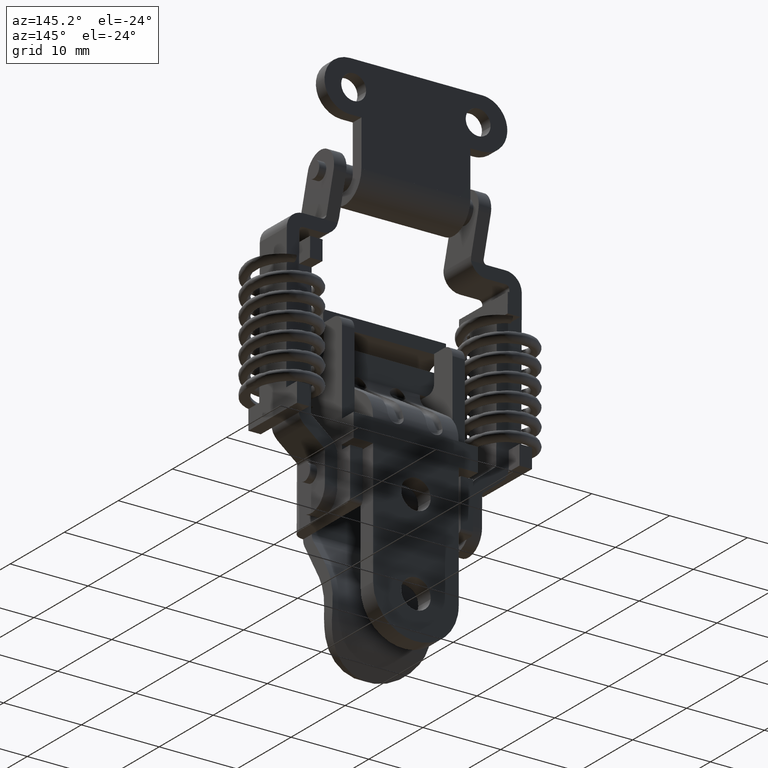
[diagram: clean part render]
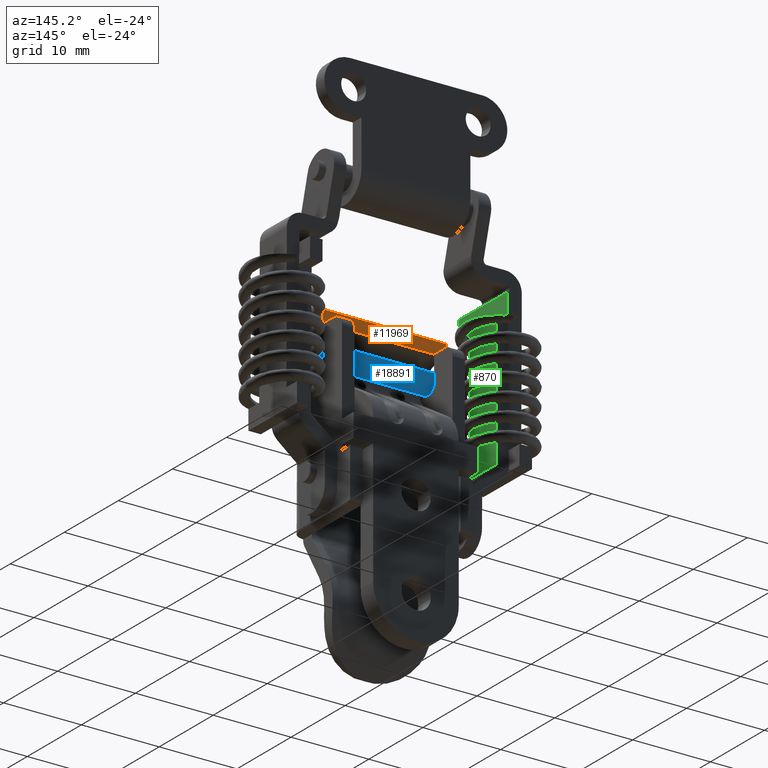
[diagram: same view with three faces highlighted in distinct colors, each labeled with its STEP entity id]
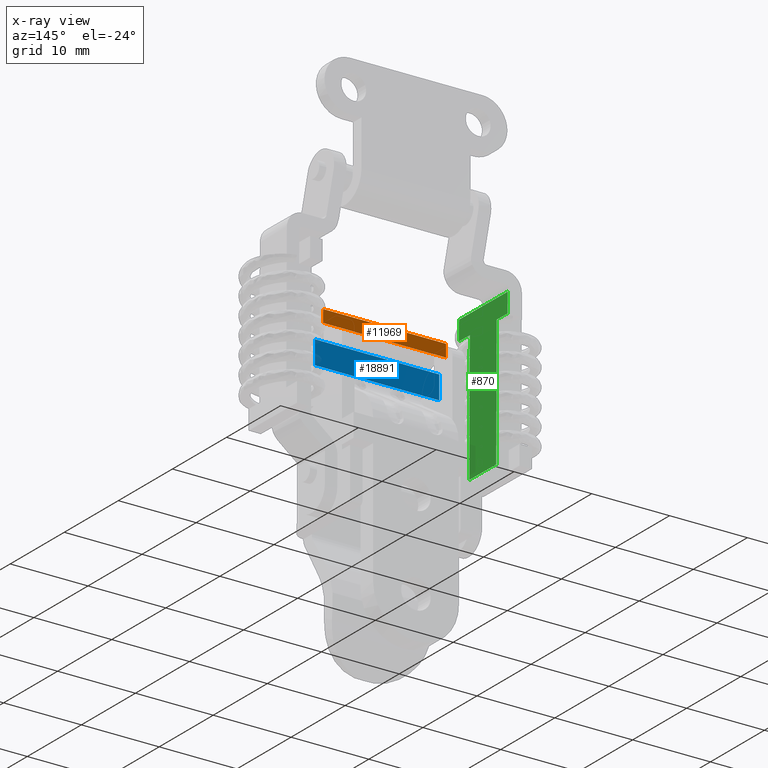
[diagram: x-ray of the same camera — body ghosted, the three highlighted faces saturated]
A machine part, auxiliary view with three faces highlighted in distinct colors.
The next image is the same camera in x-ray (body ghosted, the three faces saturated) — at least one of them is partly hidden behind the body in this view.
Their STEP definitions:

[orange] entity #11969 — the highlighted face is a freeform B-spline surface patch.
#11678=CARTESIAN_POINT('',(-2.700000000000035,7.900000000000000,-15.949999999999999));
#11679=VERTEX_POINT('',#11678);
#11680=CARTESIAN_POINT('',(-2.700000000000035,-7.900000000000000,-15.949999999999999));
#11681=VERTEX_POINT('',#11680);
#11682=CARTESIAN_POINT('',(-2.700000000000035,7.900000000000000,-15.949999999999999));
#11683=CARTESIAN_POINT('',(-2.700000000000035,-7.900000000000000,-15.949999999999999));
#11684=QUASI_UNIFORM_CURVE('',1,(#11682,#11683),.UNSPECIFIED.,.F.,.U.);
#11685=EDGE_CURVE('',#11679,#11681,#11684,.T.);
#11853=CARTESIAN_POINT('',(-2.700000000000000,7.900000000000000,-14.350000000000000));
#11854=VERTEX_POINT('',#11853);
#11860=CARTESIAN_POINT('',(-2.700000000000035,7.900000000000000,-15.949999999999999));
#11861=CARTESIAN_POINT('',(-2.700000000000000,7.900000000000000,-14.350000000000000));
#11862=QUASI_UNIFORM_CURVE('',1,(#11860,#11861),.UNSPECIFIED.,.F.,.U.);
#11863=EDGE_CURVE('',#11679,#11854,#11862,.T.);
#11938=CARTESIAN_POINT('',(-2.700000000000000,-7.899999999999911,-14.350000000000000));
#11939=VERTEX_POINT('',#11938);
#11945=CARTESIAN_POINT('',(-2.700000000000000,7.900000000000000,-14.350000000000000));
#11946=CARTESIAN_POINT('',(-2.700000000000000,-7.899999999999911,-14.350000000000000));
#11947=QUASI_UNIFORM_CURVE('',1,(#11945,#11946),.UNSPECIFIED.,.F.,.U.);
#11948=EDGE_CURVE('',#11854,#11939,#11947,.T.);
#11954=CARTESIAN_POINT('',(-2.700000000000000,-8.689210117695629,-14.270080405044791));
#11955=CARTESIAN_POINT('',(-2.700000000000000,-8.689210117695629,-16.029919780921698));
#11956=CARTESIAN_POINT('',(-2.700000000000000,8.689210400221645,-14.270080405044791));
#11957=CARTESIAN_POINT('',(-2.700000000000000,8.689210400221645,-16.029919780921698));
#11958=B_SPLINE_SURFACE_WITH_KNOTS('',1,1,((#11954,#11956),(#11955,#11957)),.UNSPECIFIED.,.F.,.F.,.U.,(2,2),(2,2),(0.041708544294164,0.958291552563384),(0.0,17.378420517917270),.UNSPECIFIED.);
#11959=ORIENTED_EDGE('',*,*,#11948,.T.);
#11960=CARTESIAN_POINT('',(-2.700000000000000,-7.899999999999911,-14.350000000000000));
#11961=CARTESIAN_POINT('',(-2.700000000000035,-7.900000000000000,-15.949999999999999));
#11962=QUASI_UNIFORM_CURVE('',1,(#11960,#11961),.UNSPECIFIED.,.F.,.U.);
#11963=EDGE_CURVE('',#11939,#11681,#11962,.T.);
#11964=ORIENTED_EDGE('',*,*,#11963,.T.);
#11965=ORIENTED_EDGE('',*,*,#11685,.F.);
#11966=ORIENTED_EDGE('',*,*,#11863,.T.);
#11967=EDGE_LOOP('',(#11959,#11964,#11965,#11966));
#11968=FACE_OUTER_BOUND('',#11967,.T.);
#11969=ADVANCED_FACE('',(#11968),#11958,.T.);

[blue] entity #18891 — the highlighted face is a freeform B-spline surface patch.
#16681=CARTESIAN_POINT('',(-4.100000000000096,-2.499999999999945,-20.350000000000001));
#16682=VERTEX_POINT('',#16681);
#17511=CARTESIAN_POINT('',(-4.100000000000096,2.499999999999945,-20.350000000000001));
#17512=VERTEX_POINT('',#17511);
#18536=CARTESIAN_POINT('',(-4.100000000000105,-5.499999999999940,-20.350000000000001));
#18537=VERTEX_POINT('',#18536);
#18543=CARTESIAN_POINT('',(-4.100000000000096,-8.0,-20.350000000000001));
#18544=VERTEX_POINT('',#18543);
#18545=CARTESIAN_POINT('',(-4.100000000000096,-8.0,-20.350000000000001));
#18546=CARTESIAN_POINT('',(-4.100000000000105,-5.499999999999940,-20.350000000000001));
#18547=QUASI_UNIFORM_CURVE('',1,(#18545,#18546),.UNSPECIFIED.,.F.,.U.);
#18548=EDGE_CURVE('',#18544,#18537,#18547,.T.);
#18679=CARTESIAN_POINT('',(-4.100000000000090,8.0,-20.350000000000001));
#18680=VERTEX_POINT('',#18679);
#18688=CARTESIAN_POINT('',(-4.100000000000105,5.500000000000000,-20.350000000000001));
#18689=VERTEX_POINT('',#18688);
#18690=CARTESIAN_POINT('',(-4.100000000000105,5.500000000000000,-20.350000000000001));
#18691=CARTESIAN_POINT('',(-4.100000000000090,8.0,-20.350000000000001));
#18692=QUASI_UNIFORM_CURVE('',1,(#18690,#18691),.UNSPECIFIED.,.F.,.U.);
#18693=EDGE_CURVE('',#18689,#18680,#18692,.T.);
#18831=CARTESIAN_POINT('',(-4.100000000000090,8.0,-17.350000000000001));
#18832=VERTEX_POINT('',#18831);
#18833=CARTESIAN_POINT('',(-4.100000000000090,8.0,-20.350000000000001));
#18834=CARTESIAN_POINT('',(-4.100000000000090,8.0,-17.350000000000001));
#18835=QUASI_UNIFORM_CURVE('',1,(#18833,#18834),.UNSPECIFIED.,.F.,.U.);
#18836=EDGE_CURVE('',#18680,#18832,#18835,.T.);
#18854=CARTESIAN_POINT('',(-4.100000000000090,-8.799199968988896,-20.499850395177010));
#18855=CARTESIAN_POINT('',(-4.100000000000090,-8.799199968988896,-17.200150355841519));
#18856=CARTESIAN_POINT('',(-4.100000000000090,8.799200398142338,-20.499850395177010));
#18857=CARTESIAN_POINT('',(-4.100000000000090,8.799200398142338,-17.200150355841519));
#18858=B_SPLINE_SURFACE_WITH_KNOTS('',1,1,((#18854,#18856),(#18855,#18857)),.UNSPECIFIED.,.F.,.F.,.U.,(2,2),(2,2),(0.0,3.299700039335491),(0.0,17.598400367131230),.UNSPECIFIED.);
#18859=ORIENTED_EDGE('',*,*,#18836,.T.);
#18860=CARTESIAN_POINT('',(-4.100000000000090,-8.0,-17.350000000000001));
#18861=VERTEX_POINT('',#18860);
#18862=CARTESIAN_POINT('',(-4.100000000000090,-8.0,-17.350000000000001));
#18863=CARTESIAN_POINT('',(-4.100000000000090,8.0,-17.350000000000001));
#18864=QUASI_UNIFORM_CURVE('',1,(#18862,#18863),.UNSPECIFIED.,.F.,.U.);
#18865=EDGE_CURVE('',#18861,#18832,#18864,.T.);
#18866=ORIENTED_EDGE('',*,*,#18865,.F.);
#18867=CARTESIAN_POINT('',(-4.100000000000096,-8.0,-20.350000000000001));
#18868=CARTESIAN_POINT('',(-4.100000000000090,-8.0,-17.350000000000001));
#18869=QUASI_UNIFORM_CURVE('',1,(#18867,#18868),.UNSPECIFIED.,.F.,.U.);
#18870=EDGE_CURVE('',#18544,#18861,#18869,.T.);
#18871=ORIENTED_EDGE('',*,*,#18870,.F.);
#18872=ORIENTED_EDGE('',*,*,#18548,.T.);
#18873=CARTESIAN_POINT('',(-4.100000000000105,-5.499999999999940,-20.350000000000001));
#18874=CARTESIAN_POINT('',(-4.100000000000096,-2.499999999999945,-20.350000000000001));
#18875=QUASI_UNIFORM_CURVE('',1,(#18873,#18874),.UNSPECIFIED.,.F.,.U.);
#18876=EDGE_CURVE('',#18537,#16682,#18875,.T.);
#18877=ORIENTED_EDGE('',*,*,#18876,.T.);
#18878=CARTESIAN_POINT('',(-4.100000000000096,-2.499999999999945,-20.350000000000001));
#18879=CARTESIAN_POINT('',(-4.100000000000096,2.499999999999945,-20.350000000000001));
#18880=QUASI_UNIFORM_CURVE('',1,(#18878,#18879),.UNSPECIFIED.,.F.,.U.);
#18881=EDGE_CURVE('',#16682,#17512,#18880,.T.);
#18882=ORIENTED_EDGE('',*,*,#18881,.T.);
#18883=CARTESIAN_POINT('',(-4.100000000000096,2.499999999999945,-20.350000000000001));
#18884=CARTESIAN_POINT('',(-4.100000000000105,5.500000000000000,-20.350000000000001));
#18885=QUASI_UNIFORM_CURVE('',1,(#18883,#18884),.UNSPECIFIED.,.F.,.U.);
#18886=EDGE_CURVE('',#17512,#18689,#18885,.T.);
#18887=ORIENTED_EDGE('',*,*,#18886,.T.);
#18888=ORIENTED_EDGE('',*,*,#18693,.T.);
#18889=EDGE_LOOP('',(#18859,#18866,#18871,#18872,#18877,#18882,#18887,#18888));
#18890=FACE_OUTER_BOUND('',#18889,.T.);
#18891=ADVANCED_FACE('',(#18890),#18858,.F.);

[green] entity #870 — the highlighted face is a freeform B-spline surface patch.
#303=CARTESIAN_POINT('',(-11.900000000000221,0.797129355228797,-28.547256274917601));
#304=VERTEX_POINT('',#303);
#318=CARTESIAN_POINT('',(-11.900000000000221,-4.202870537584990,-28.547256274917601));
#319=VERTEX_POINT('',#318);
#320=CARTESIAN_POINT('',(-11.900000000000221,0.797129355228797,-28.547256274917601));
#321=CARTESIAN_POINT('',(-11.900000000000221,-4.202870537584990,-28.547256274917601));
#322=QUASI_UNIFORM_CURVE('',1,(#320,#321),.UNSPECIFIED.,.F.,.U.);
#323=EDGE_CURVE('',#304,#319,#322,.T.);
#548=CARTESIAN_POINT('',(-11.900000000000000,-4.211129215528580,-11.851239540722400));
#549=VERTEX_POINT('',#548);
#557=CARTESIAN_POINT('',(-11.900000000000000,-6.200000000000000,-11.851239540722400));
#558=VERTEX_POINT('',#557);
#559=CARTESIAN_POINT('',(-11.900000000000000,-4.211129215528580,-11.851239540722400));
#560=CARTESIAN_POINT('',(-11.900000000000000,-6.200000000000000,-11.851239540722400));
#561=QUASI_UNIFORM_CURVE('',1,(#559,#560),.UNSPECIFIED.,.F.,.U.);
#562=EDGE_CURVE('',#549,#558,#561,.T.);
#608=CARTESIAN_POINT('',(-11.900000000000221,-4.202870537584990,-28.547256274917601));
#609=CARTESIAN_POINT('',(-11.900000000000000,-4.211129215528580,-11.851239540722400));
#610=QUASI_UNIFORM_CURVE('',1,(#608,#609),.UNSPECIFIED.,.F.,.U.);
#611=EDGE_CURVE('',#319,#549,#610,.T.);
#628=CARTESIAN_POINT('',(-11.900000000000000,0.788868405958703,-11.851239540722400));
#629=VERTEX_POINT('',#628);
#630=CARTESIAN_POINT('',(-11.900000000000000,2.800000000000000,-11.851239540722400));
#631=VERTEX_POINT('',#630);
#632=CARTESIAN_POINT('',(-11.900000000000000,0.788868405958703,-11.851239540722400));
#633=CARTESIAN_POINT('',(-11.900000000000000,2.800000000000000,-11.851239540722400));
#634=QUASI_UNIFORM_CURVE('',1,(#632,#633),.UNSPECIFIED.,.F.,.U.);
#635=EDGE_CURVE('',#629,#631,#634,.T.);
#670=CARTESIAN_POINT('',(-11.900000000000221,0.797129355228797,-28.547256274917601));
#671=CARTESIAN_POINT('',(-11.900000000000000,0.788868405958703,-11.851239540722400));
#672=QUASI_UNIFORM_CURVE('',1,(#670,#671),.UNSPECIFIED.,.F.,.U.);
#673=EDGE_CURVE('',#304,#629,#672,.T.);
#708=CARTESIAN_POINT('',(-11.900000000000000,-6.200000000000000,-9.349999999999831));
#709=VERTEX_POINT('',#708);
#710=CARTESIAN_POINT('',(-11.900000000000000,-6.200000000000000,-11.851239540722400));
#711=CARTESIAN_POINT('',(-11.900000000000000,-6.200000000000000,-9.349999999999831));
#712=QUASI_UNIFORM_CURVE('',1,(#710,#711),.UNSPECIFIED.,.F.,.U.);
#713=EDGE_CURVE('',#558,#709,#712,.T.);
#737=CARTESIAN_POINT('',(-11.900000000000000,2.800000000000000,-9.349999999999831));
#738=VERTEX_POINT('',#737);
#739=CARTESIAN_POINT('',(-11.900000000000000,2.800000000000000,-9.349999999999831));
#740=CARTESIAN_POINT('',(-11.900000000000000,-6.200000000000000,-9.349999999999831));
#741=QUASI_UNIFORM_CURVE('',1,(#739,#740),.UNSPECIFIED.,.F.,.U.);
#742=EDGE_CURVE('',#738,#709,#741,.T.);
#770=CARTESIAN_POINT('',(-11.900000000000000,2.800000000000000,-11.851239540722400));
#771=CARTESIAN_POINT('',(-11.900000000000000,2.800000000000000,-9.349999999999831));
#772=QUASI_UNIFORM_CURVE('',1,(#770,#771),.UNSPECIFIED.,.F.,.U.);
#773=EDGE_CURVE('',#631,#738,#772,.T.);
#855=CARTESIAN_POINT('',(-11.900000000000221,3.249549950401933,-8.391097446695911));
#856=CARTESIAN_POINT('',(-11.900000000000221,3.249549950401933,-29.506159686405748));
#857=CARTESIAN_POINT('',(-11.900000000000221,-6.649549548070582,-8.391097446695911));
#858=CARTESIAN_POINT('',(-11.900000000000221,-6.649549548070582,-29.506159686405748));
#859=B_SPLINE_SURFACE_WITH_KNOTS('',1,1,((#855,#857),(#856,#858)),.UNSPECIFIED.,.F.,.F.,.U.,(2,2),(2,2),(0.0,21.115062239709840),(0.0,9.899099498472516),.UNSPECIFIED.);
#860=ORIENTED_EDGE('',*,*,#673,.T.);
#861=ORIENTED_EDGE('',*,*,#635,.T.);
#862=ORIENTED_EDGE('',*,*,#773,.T.);
#863=ORIENTED_EDGE('',*,*,#742,.T.);
#864=ORIENTED_EDGE('',*,*,#713,.F.);
#865=ORIENTED_EDGE('',*,*,#562,.F.);
#866=ORIENTED_EDGE('',*,*,#611,.F.);
#867=ORIENTED_EDGE('',*,*,#323,.F.);
#868=EDGE_LOOP('',(#860,#861,#862,#863,#864,#865,#866,#867));
#869=FACE_OUTER_BOUND('',#868,.T.);
#870=ADVANCED_FACE('',(#869),#859,.F.);